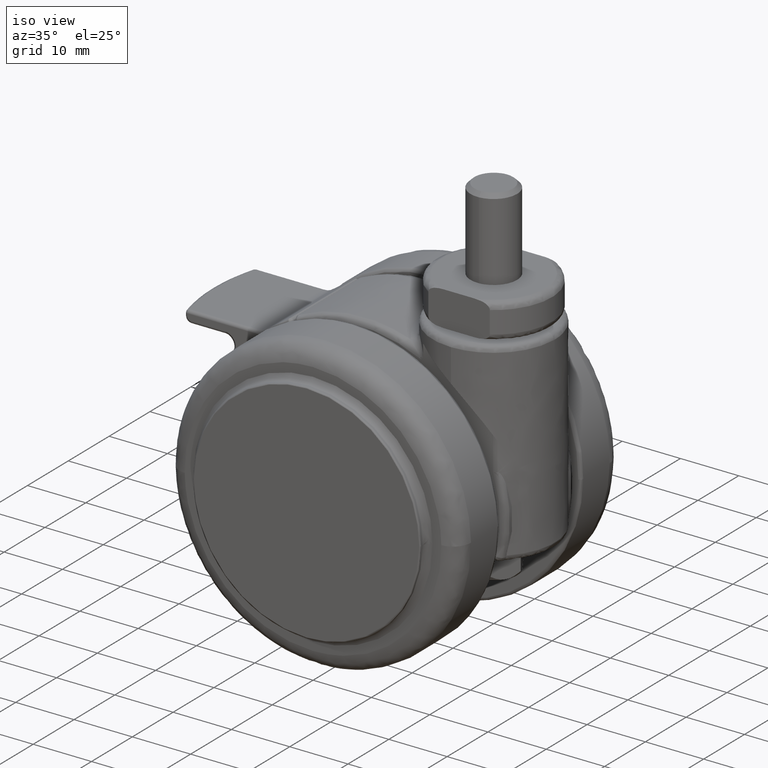
[diagram: clean part render]
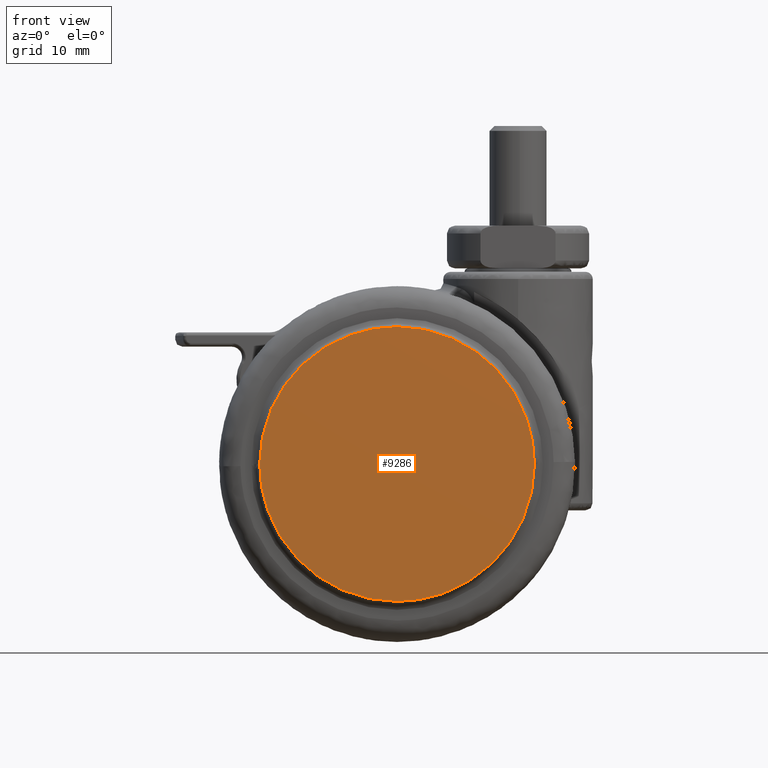
[diagram: tour spotlight — one face highlighted and labeled with its STEP entity id]
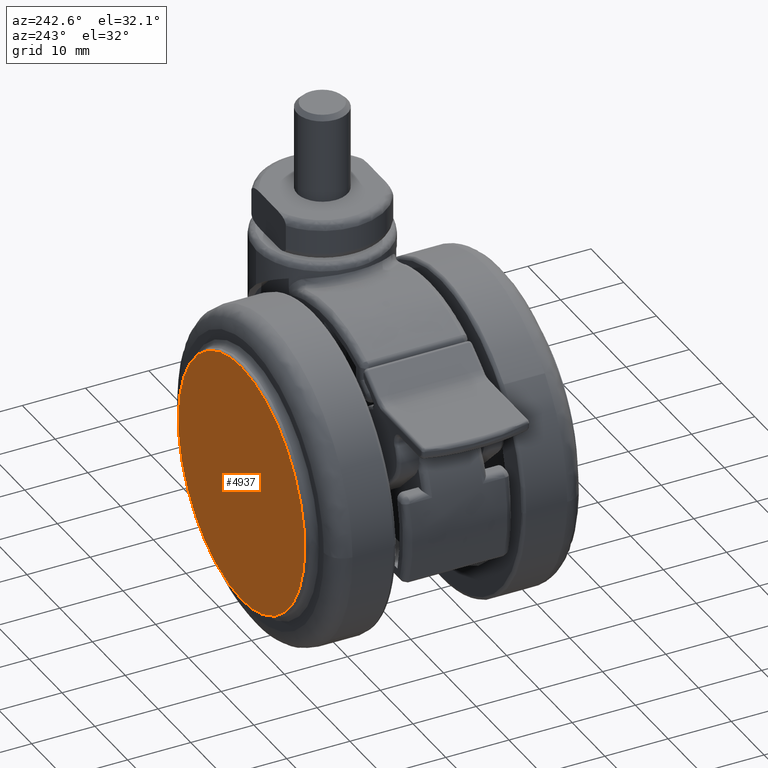
[diagram: tour spotlight — one face highlighted and labeled with its STEP entity id]
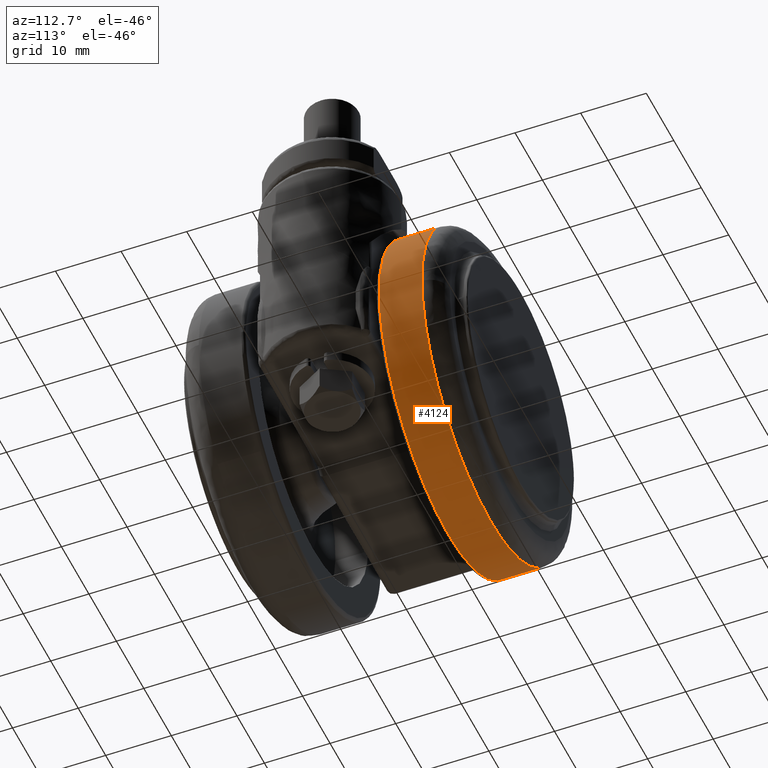
[diagram: tour spotlight — one face highlighted and labeled with its STEP entity id]
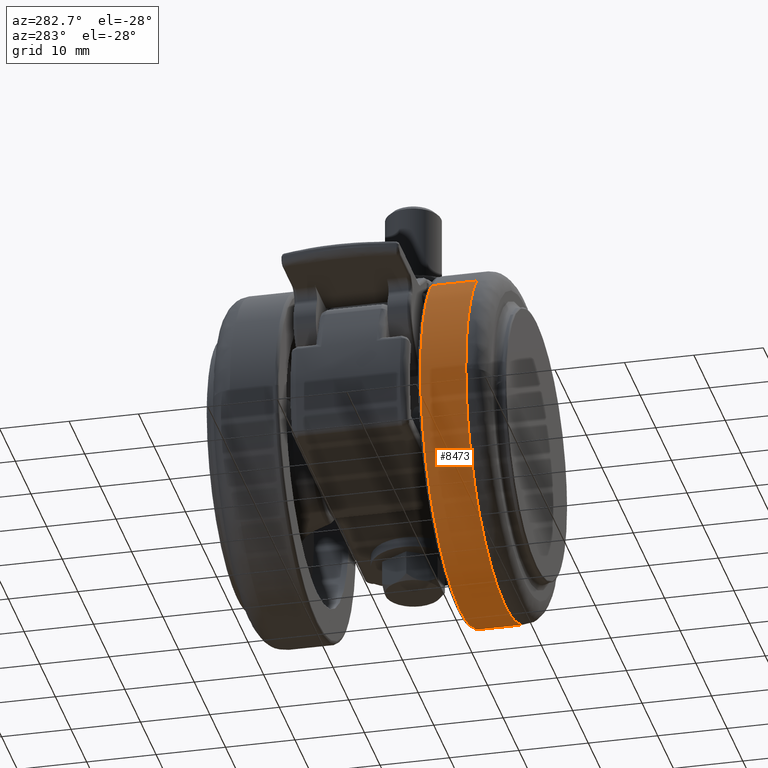
[diagram: tour spotlight — one face highlighted and labeled with its STEP entity id]
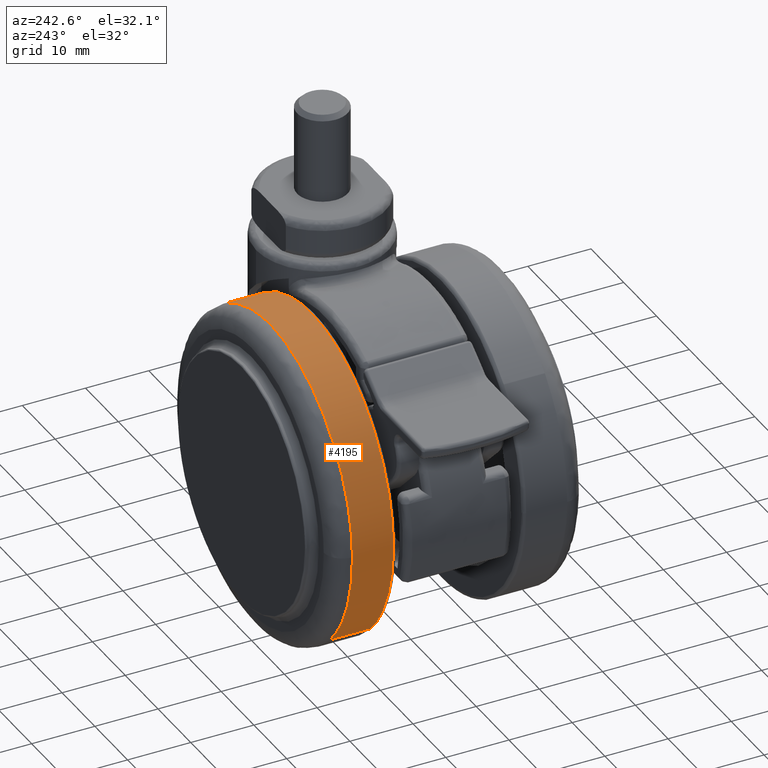
[diagram: tour spotlight — one face highlighted and labeled with its STEP entity id]
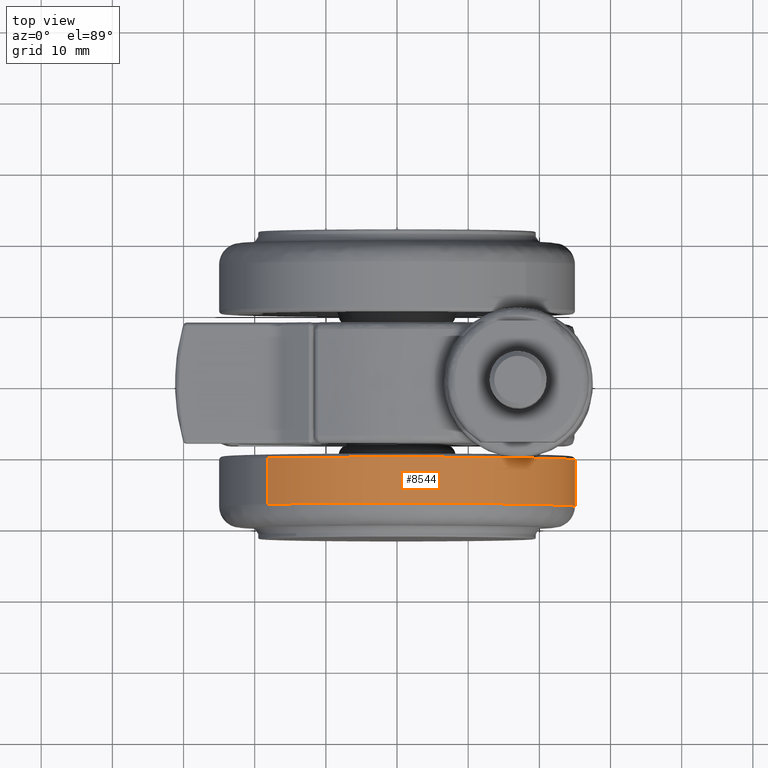
[diagram: tour spotlight — one face highlighted and labeled with its STEP entity id]
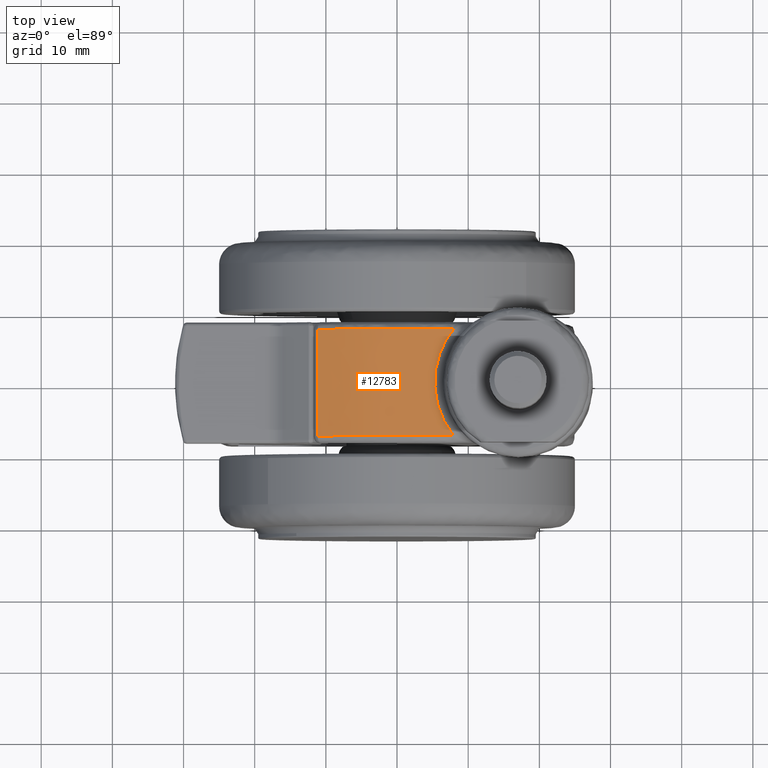
[diagram: tour spotlight — one face highlighted and labeled with its STEP entity id]
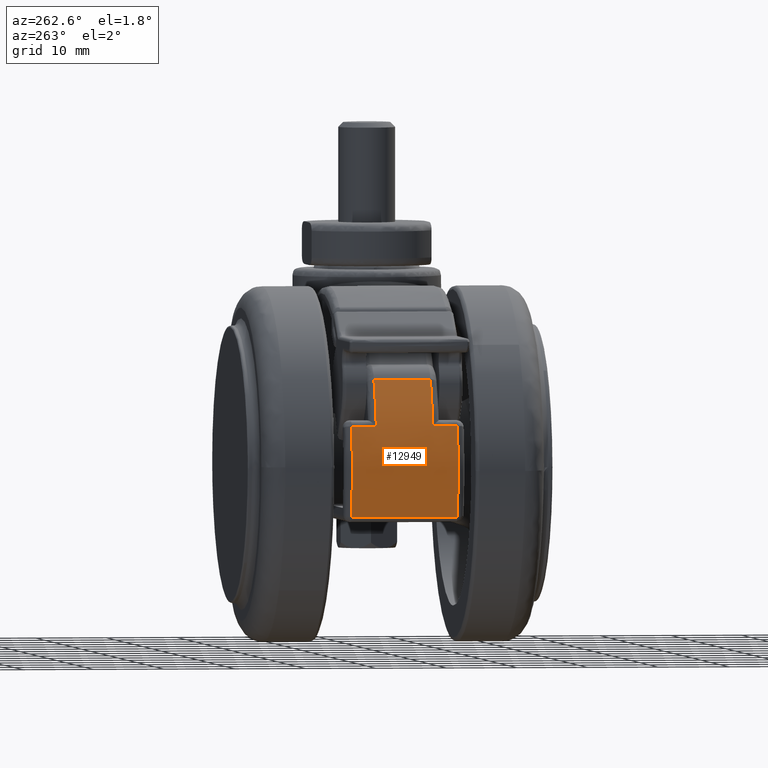
[diagram: tour spotlight — one face highlighted and labeled with its STEP entity id]
A machine part: a face-by-face anatomy tour. The part has 246 B-rep faces; the first image is the clean iso view, then the 8 largest visible faces are spotlighted one at a time (largest first), each with its STEP entity span.

Face 1 — front view, entity #9286. In plain terms, the highlighted face is a freeform B-spline surface patch.
Definition (entity closure, byte-faithful):
#9148=CARTESIAN_POINT('',(-19.300000002463179,-21.600000000000001,-1.770490E-015));
#9149=VERTEX_POINT('',#9148);
#9163=CARTESIAN_POINT('',(0.0,-21.600000000000001,19.300000000000001));
#9164=VERTEX_POINT('',#9163);
#9165=CARTESIAN_POINT('',(-19.300000002463179,-21.600000000000001,-1.770490E-015));
#9166=CARTESIAN_POINT('',(-19.300000001231588,-21.599999999999991,19.300000000000008));
#9167=CARTESIAN_POINT('',(0.0,-21.600000000000001,19.300000000000001));
#9175=(BOUNDED_CURVE()B_SPLINE_CURVE(2,(#9165,#9166,#9167),.UNSPECIFIED.,.F.,.U.)B_SPLINE_CURVE_WITH_KNOTS((3,3),(0.750000000000000,1.0),.UNSPECIFIED.)CURVE()GEOMETRIC_REPRESENTATION_ITEM()RATIONAL_B_SPLINE_CURVE((1.0,0.707106781186547,1.0))REPRESENTATION_ITEM(''));
#9176=EDGE_CURVE('',#9149,#9164,#9175,.T.);
#9178=CARTESIAN_POINT('',(19.300000002463179,-21.600000000000001,8.852452E-016));
#9179=VERTEX_POINT('',#9178);
#9180=CARTESIAN_POINT('',(0.0,-21.600000000000001,19.300000000000001));
#9181=CARTESIAN_POINT('',(19.300000001231588,-21.599999999999991,19.300000000000008));
#9182=CARTESIAN_POINT('',(19.300000002463179,-21.600000000000001,8.852452E-016));
#9190=(BOUNDED_CURVE()B_SPLINE_CURVE(2,(#9180,#9181,#9182),.UNSPECIFIED.,.F.,.U.)B_SPLINE_CURVE_WITH_KNOTS((3,3),(0.0,0.250000000000000),.UNSPECIFIED.)CURVE()GEOMETRIC_REPRESENTATION_ITEM()RATIONAL_B_SPLINE_CURVE((1.0,0.707106781186547,1.0))REPRESENTATION_ITEM(''));
#9191=EDGE_CURVE('',#9164,#9179,#9190,.T.);
#9243=CARTESIAN_POINT('',(0.0,-21.600000000000001,-19.300000000000001));
#9244=VERTEX_POINT('',#9243);
#9245=CARTESIAN_POINT('',(19.300000002463179,-21.600000000000001,8.852452E-016));
#9246=CARTESIAN_POINT('',(19.300000001231588,-21.600000000000009,-19.300000000000008));
#9247=CARTESIAN_POINT('',(0.0,-21.600000000000001,-19.300000000000001));
#9255=(BOUNDED_CURVE()B_SPLINE_CURVE(2,(#9245,#9246,#9247),.UNSPECIFIED.,.F.,.U.)B_SPLINE_CURVE_WITH_KNOTS((3,3),(0.250000000000000,0.500000000000000),.UNSPECIFIED.)CURVE()GEOMETRIC_REPRESENTATION_ITEM()RATIONAL_B_SPLINE_CURVE((1.0,0.707106781186547,1.0))REPRESENTATION_ITEM(''));
#9256=EDGE_CURVE('',#9179,#9244,#9255,.T.);
#9258=CARTESIAN_POINT('',(0.0,-21.600000000000001,-19.300000000000001));
#9259=CARTESIAN_POINT('',(-19.300000001231588,-21.600000000000009,-19.300000000000008));
#9260=CARTESIAN_POINT('',(-19.300000002463179,-21.600000000000001,-1.770490E-015));
#9268=(BOUNDED_CURVE()B_SPLINE_CURVE(2,(#9258,#9259,#9260),.UNSPECIFIED.,.F.,.U.)B_SPLINE_CURVE_WITH_KNOTS((3,3),(0.500000000000000,0.750000000000000),.UNSPECIFIED.)CURVE()GEOMETRIC_REPRESENTATION_ITEM()RATIONAL_B_SPLINE_CURVE((1.0,0.707106781186547,1.0))REPRESENTATION_ITEM(''));
#9269=EDGE_CURVE('',#9244,#9149,#9268,.T.);
#9275=CARTESIAN_POINT('',(-21.228069927894961,-21.600000000000001,-21.228069925185711));
#9276=CARTESIAN_POINT('',(-21.228069927894961,-21.600000000000001,21.228070960518391));
#9277=CARTESIAN_POINT('',(21.228070963227641,-21.600000000000001,-21.228069925185711));
#9278=CARTESIAN_POINT('',(21.228070963227641,-21.600000000000001,21.228070960518391));
#9279=B_SPLINE_SURFACE_WITH_KNOTS('',1,1,((#9275,#9277),(#9276,#9278)),.UNSPECIFIED.,.F.,.F.,.U.,(2,2),(2,2),(0.0,42.456140885704102),(0.0,42.456140891122601),.UNSPECIFIED.);
#9280=ORIENTED_EDGE('',*,*,#9176,.F.);
#9281=ORIENTED_EDGE('',*,*,#9269,.F.);
#9282=ORIENTED_EDGE('',*,*,#9256,.F.);
#9283=ORIENTED_EDGE('',*,*,#9191,.F.);
#9284=EDGE_LOOP('',(#9280,#9281,#9282,#9283));
#9285=FACE_OUTER_BOUND('',#9284,.T.);
#9286=ADVANCED_FACE('',(#9285),#9279,.F.);

Face 2 — auxiliary view, entity #4937. In plain terms, the highlighted face is a freeform B-spline surface patch.
Definition (entity closure, byte-faithful):
#4799=CARTESIAN_POINT('',(19.300000002463179,21.600000000000001,-1.770490E-015));
#4800=VERTEX_POINT('',#4799);
#4814=CARTESIAN_POINT('',(2.645150E-015,21.600000000000001,19.300000000000001));
#4815=VERTEX_POINT('',#4814);
#4816=CARTESIAN_POINT('',(19.300000002463179,21.600000000000001,-1.770490E-015));
#4817=CARTESIAN_POINT('',(19.300000001231588,21.599999999999991,19.300000000000008));
#4818=CARTESIAN_POINT('',(2.645150E-015,21.600000000000001,19.300000000000001));
#4826=(BOUNDED_CURVE()B_SPLINE_CURVE(2,(#4816,#4817,#4818),.UNSPECIFIED.,.F.,.U.)B_SPLINE_CURVE_WITH_KNOTS((3,3),(0.750000000000000,1.0),.UNSPECIFIED.)CURVE()GEOMETRIC_REPRESENTATION_ITEM()RATIONAL_B_SPLINE_CURVE((1.0,0.707106781186547,1.0))REPRESENTATION_ITEM(''));
#4827=EDGE_CURVE('',#4800,#4815,#4826,.T.);
#4829=CARTESIAN_POINT('',(-19.300000002463179,21.600000000000009,8.852452E-016));
#4830=VERTEX_POINT('',#4829);
#4831=CARTESIAN_POINT('',(2.645150E-015,21.600000000000001,19.300000000000001));
#4832=CARTESIAN_POINT('',(-19.300000001231588,21.600000000000009,19.300000000000008));
#4833=CARTESIAN_POINT('',(-19.300000002463179,21.600000000000009,8.852452E-016));
#4841=(BOUNDED_CURVE()B_SPLINE_CURVE(2,(#4831,#4832,#4833),.UNSPECIFIED.,.F.,.U.)B_SPLINE_CURVE_WITH_KNOTS((3,3),(0.0,0.250000000000000),.UNSPECIFIED.)CURVE()GEOMETRIC_REPRESENTATION_ITEM()RATIONAL_B_SPLINE_CURVE((1.0,0.707106781186547,1.0))REPRESENTATION_ITEM(''));
#4842=EDGE_CURVE('',#4815,#4830,#4841,.T.);
#4894=CARTESIAN_POINT('',(2.645150E-015,21.600000000000001,-19.300000000000001));
#4895=VERTEX_POINT('',#4894);
#4896=CARTESIAN_POINT('',(-19.300000002463179,21.600000000000009,8.852452E-016));
#4897=CARTESIAN_POINT('',(-19.300000001231588,21.600000000000009,-19.300000000000008));
#4898=CARTESIAN_POINT('',(2.645150E-015,21.600000000000001,-19.300000000000001));
#4906=(BOUNDED_CURVE()B_SPLINE_CURVE(2,(#4896,#4897,#4898),.UNSPECIFIED.,.F.,.U.)B_SPLINE_CURVE_WITH_KNOTS((3,3),(0.250000000000000,0.500000000000000),.UNSPECIFIED.)CURVE()GEOMETRIC_REPRESENTATION_ITEM()RATIONAL_B_SPLINE_CURVE((1.0,0.707106781186547,1.0))REPRESENTATION_ITEM(''));
#4907=EDGE_CURVE('',#4830,#4895,#4906,.T.);
#4909=CARTESIAN_POINT('',(2.645150E-015,21.600000000000001,-19.300000000000001));
#4910=CARTESIAN_POINT('',(19.300000001231588,21.599999999999991,-19.300000000000008));
#4911=CARTESIAN_POINT('',(19.300000002463179,21.600000000000001,-1.770490E-015));
#4919=(BOUNDED_CURVE()B_SPLINE_CURVE(2,(#4909,#4910,#4911),.UNSPECIFIED.,.F.,.U.)B_SPLINE_CURVE_WITH_KNOTS((3,3),(0.500000000000000,0.750000000000000),.UNSPECIFIED.)CURVE()GEOMETRIC_REPRESENTATION_ITEM()RATIONAL_B_SPLINE_CURVE((1.0,0.707106781186547,1.0))REPRESENTATION_ITEM(''));
#4920=EDGE_CURVE('',#4895,#4800,#4919,.T.);
#4926=CARTESIAN_POINT('',(21.228069927894961,21.600000000000001,-21.228069925185711));
#4927=CARTESIAN_POINT('',(21.228069927894961,21.600000000000001,21.228070960518391));
#4928=CARTESIAN_POINT('',(-21.228070963227641,21.600000000000009,-21.228069925185711));
#4929=CARTESIAN_POINT('',(-21.228070963227641,21.600000000000009,21.228070960518391));
#4930=B_SPLINE_SURFACE_WITH_KNOTS('',1,1,((#4926,#4928),(#4927,#4929)),.UNSPECIFIED.,.F.,.F.,.U.,(2,2),(2,2),(0.0,42.456140885704102),(0.0,42.456140891122601),.UNSPECIFIED.);
#4931=ORIENTED_EDGE('',*,*,#4827,.F.);
#4932=ORIENTED_EDGE('',*,*,#4920,.F.);
#4933=ORIENTED_EDGE('',*,*,#4907,.F.);
#4934=ORIENTED_EDGE('',*,*,#4842,.F.);
#4935=EDGE_LOOP('',(#4931,#4932,#4933,#4934));
#4936=FACE_OUTER_BOUND('',#4935,.T.);
#4937=ADVANCED_FACE('',(#4936),#4930,.F.);

Face 3 — auxiliary view, entity #4124. In plain terms, the highlighted face is a freeform B-spline surface patch.
Definition (entity closure, byte-faithful):
#3897=CARTESIAN_POINT('',(-18.134359921646951,10.499999999096900,-17.208863711243801));
#3898=VERTEX_POINT('',#3897);
#3914=CARTESIAN_POINT('',(1.285837E-015,10.500000000000000,-25.0));
#3915=VERTEX_POINT('',#3914);
#3916=CARTESIAN_POINT('',(-18.134359921646954,10.499999999096879,-17.208863711243819));
#3917=CARTESIAN_POINT('',(-10.740848205312046,10.499999999627256,-24.999999999999996));
#3918=CARTESIAN_POINT('',(1.285837E-015,10.500000000000000,-25.0));
#3926=(BOUNDED_CURVE()B_SPLINE_CURVE(2,(#3916,#3917,#3918),.UNSPECIFIED.,.F.,.U.)B_SPLINE_CURVE_WITH_KNOTS((3,3),(0.371049520990958,0.500000000000000),.UNSPECIFIED.)CURVE()GEOMETRIC_REPRESENTATION_ITEM()RATIONAL_B_SPLINE_CURVE((0.853699661789174,0.848925116542021,1.0))REPRESENTATION_ITEM(''));
#3927=EDGE_CURVE('',#3898,#3915,#3926,.T.);
#3929=CARTESIAN_POINT('',(24.998026105095381,10.499999998242879,-0.314150997084987));
#3930=VERTEX_POINT('',#3929);
#3931=CARTESIAN_POINT('',(1.285837E-015,10.500000000000000,-25.0));
#3932=CARTESIAN_POINT('',(24.687798247681695,10.499999999121441,-24.999999999999996));
#3933=CARTESIAN_POINT('',(24.998026105095381,10.499999998242881,-0.314150997084987));
#3941=(BOUNDED_CURVE()B_SPLINE_CURVE(2,(#3931,#3932,#3933),.UNSPECIFIED.,.F.,.U.)B_SPLINE_CURVE_WITH_KNOTS((3,3),(0.500000000000000,0.747784295921720),.UNSPECIFIED.)CURVE()GEOMETRIC_REPRESENTATION_ITEM()RATIONAL_B_SPLINE_CURVE((1.0,0.709702639984250,0.994854295643993))REPRESENTATION_ITEM(''));
#3942=EDGE_CURVE('',#3915,#3930,#3941,.T.);
#3993=CARTESIAN_POINT('',(18.134359921646951,10.499999999096890,17.208863711243801));
#3994=VERTEX_POINT('',#3993);
#3995=CARTESIAN_POINT('',(24.998026105095381,10.499999998242881,-0.314150997084987));
#3996=CARTESIAN_POINT('',(24.999999999999993,10.499999998248336,-0.157081699797828));
#3997=CARTESIAN_POINT('',(24.999999999999989,10.499999998253850,4.137340E-015));
#3998=CARTESIAN_POINT('',(24.999999999999986,10.499999998604361,9.973988105134460));
#3999=CARTESIAN_POINT('',(18.134359921646954,10.499999999096875,17.208863711243819));
#4007=(BOUNDED_CURVE()B_SPLINE_CURVE(2,(#3995,#3996,#3997,#3998,#3999),.UNSPECIFIED.,.F.,.U.)B_SPLINE_CURVE_WITH_KNOTS((3,2,3),(0.747784295921720,0.750000000000000,0.871049520990958),.UNSPECIFIED.)CURVE()GEOMETRIC_REPRESENTATION_ITEM()RATIONAL_B_SPLINE_CURVE((0.994854295643993,0.997404141202298,1.0,0.858181664644527,0.853699661789174))REPRESENTATION_ITEM(''));
#4008=EDGE_CURVE('',#3930,#3994,#4007,.T.);
#4042=CARTESIAN_POINT('',(-18.134359275307180,17.162500000286400,-17.208864392343848));
#4043=CARTESIAN_POINT('',(-0.925494882963340,17.162500000286403,-35.343223667651039));
#4044=CARTESIAN_POINT('',(17.208864392343848,17.162500000286400,-18.134359275307190));
#4045=CARTESIAN_POINT('',(35.343223667651039,17.162500000286403,-0.925494882963342));
#4046=CARTESIAN_POINT('',(18.134359275307190,17.162500000286400,17.208864392343848));
#4047=CARTESIAN_POINT('',(-18.134359275307190,10.333437498191801,-17.208864392343848));
#4048=CARTESIAN_POINT('',(-0.925494882963341,10.333437498191795,-35.343223667651039));
#4049=CARTESIAN_POINT('',(17.208864392343848,10.333437498191790,-18.134359275307190));
#4050=CARTESIAN_POINT('',(35.343223667651039,10.333437498191792,-0.925494882963342));
#4051=CARTESIAN_POINT('',(18.134359275307190,10.333437498191790,17.208864392343848));
#4059=(BOUNDED_SURFACE()B_SPLINE_SURFACE(2,1,((#4042,#4047),(#4043,#4048),(#4044,#4049),(#4045,#4050),(#4046,#4051)),.UNSPECIFIED.,.F.,.F.,.U.)B_SPLINE_SURFACE_WITH_KNOTS((3,2,3),(2,2),(0.0,41.421356237309503,82.842712474618992),(0.0,6.829062502094605),.UNSPECIFIED.)GEOMETRIC_REPRESENTATION_ITEM()RATIONAL_B_SPLINE_SURFACE(((1.0,1.0),(0.707106781186548,0.707106781186548),(1.0,1.0),(0.707106781186548,0.707106781186548),(1.0,1.0)))REPRESENTATION_ITEM('')SURFACE());
#4060=ORIENTED_EDGE('',*,*,#3927,.F.);
#4061=CARTESIAN_POINT('',(-18.134359913672380,17.000000000121592,-17.208863719647240));
#4062=VERTEX_POINT('',#4061);
#4063=CARTESIAN_POINT('',(-18.134359913672380,17.000000000121592,-17.208863719647240));
#4064=CARTESIAN_POINT('',(-18.134359921646951,10.499999999096900,-17.208863711243801));
#4065=QUASI_UNIFORM_CURVE('',1,(#4063,#4064),.UNSPECIFIED.,.F.,.U.);
#4066=EDGE_CURVE('',#4062,#3898,#4065,.T.);
#4067=ORIENTED_EDGE('',*,*,#4066,.F.);
#4068=CARTESIAN_POINT('',(2.081831E-015,17.0,-25.0));
#4069=VERTEX_POINT('',#4068);
#4070=CARTESIAN_POINT('',(-18.134359913672395,17.000000000121595,-17.208863719647251));
#4071=CARTESIAN_POINT('',(-10.740848198450356,17.000000000050179,-25.000000000000004));
#4072=CARTESIAN_POINT('',(2.081831E-015,17.0,-25.0));
#4080=(BOUNDED_CURVE()B_SPLINE_CURVE(2,(#4070,#4071,#4072),.UNSPECIFIED.,.F.,.U.)B_SPLINE_CURVE_WITH_KNOTS((3,3),(0.371049521060892,0.500000000000000),.UNSPECIFIED.)CURVE()GEOMETRIC_REPRESENTATION_ITEM()RATIONAL_B_SPLINE_CURVE((0.853699661783995,0.848925116623953,1.0))REPRESENTATION_ITEM(''));
#4081=EDGE_CURVE('',#4062,#4069,#4080,.T.);
#4082=ORIENTED_EDGE('',*,*,#4081,.T.);
#4083=CARTESIAN_POINT('',(24.998026105095391,17.000000000236550,-0.314150997084988));
#4084=VERTEX_POINT('',#4083);
#4085=CARTESIAN_POINT('',(2.081831E-015,17.0,-25.0));
#4086=CARTESIAN_POINT('',(24.687798247681695,17.000000000118270,-24.999999999999996));
#4087=CARTESIAN_POINT('',(24.998026105095391,17.000000000236554,-0.314150997084988));
#4095=(BOUNDED_CURVE()B_SPLINE_CURVE(2,(#4085,#4086,#4087),.UNSPECIFIED.,.F.,.U.)B_SPLINE_CURVE_WITH_KNOTS((3,3),(0.500000000000000,0.747784295921720),.UNSPECIFIED.)CURVE()GEOMETRIC_REPRESENTATION_ITEM()RATIONAL_B_SPLINE_CURVE((1.0,0.709702639984250,0.994854295643993))REPRESENTATION_ITEM(''));
#4096=EDGE_CURVE('',#4069,#4084,#4095,.T.);
#4097=ORIENTED_EDGE('',*,*,#4096,.T.);
#4098=CARTESIAN_POINT('',(18.134359913672402,17.000000000121581,17.208863719647230));
#4099=VERTEX_POINT('',#4098);
#4100=CARTESIAN_POINT('',(24.998026105095391,17.000000000236554,-0.314150997084988));
#4101=CARTESIAN_POINT('',(24.999999999999993,17.000000000235822,-0.157081699797829));
#4102=CARTESIAN_POINT('',(25.0,17.000000000235069,3.122195E-015));
#4103=CARTESIAN_POINT('',(25.0,17.000000000187882,9.973988111848920));
#4104=CARTESIAN_POINT('',(18.134359913672405,17.000000000121585,17.208863719647240));
#4112=(BOUNDED_CURVE()B_SPLINE_CURVE(2,(#4100,#4101,#4102,#4103,#4104),.UNSPECIFIED.,.F.,.U.)B_SPLINE_CURVE_WITH_KNOTS((3,2,3),(0.747784295921720,0.750000000000000,0.871049521060892),.UNSPECIFIED.)CURVE()GEOMETRIC_REPRESENTATION_ITEM()RATIONAL_B_SPLINE_CURVE((0.994854295643993,0.997404141202298,1.0,0.858181664562594,0.853699661783996))REPRESENTATION_ITEM(''));
#4113=EDGE_CURVE('',#4084,#4099,#4112,.T.);
#4114=ORIENTED_EDGE('',*,*,#4113,.T.);
#4115=CARTESIAN_POINT('',(18.134359913672402,17.000000000121581,17.208863719647230));
#4116=CARTESIAN_POINT('',(18.134359921646951,10.499999999096890,17.208863711243801));
#4117=QUASI_UNIFORM_CURVE('',1,(#4115,#4116),.UNSPECIFIED.,.F.,.U.);
#4118=EDGE_CURVE('',#4099,#3994,#4117,.T.);
#4119=ORIENTED_EDGE('',*,*,#4118,.T.);
#4120=ORIENTED_EDGE('',*,*,#4008,.F.);
#4121=ORIENTED_EDGE('',*,*,#3942,.F.);
#4122=EDGE_LOOP('',(#4060,#4067,#4082,#4097,#4114,#4119,#4120,#4121));
#4123=FACE_OUTER_BOUND('',#4122,.T.);
#4124=ADVANCED_FACE('',(#4123),#4059,.T.);

Face 4 — auxiliary view, entity #8473. In plain terms, the highlighted face is a freeform B-spline surface patch.
Definition (entity closure, byte-faithful):
#8246=CARTESIAN_POINT('',(18.134359921646951,-10.499999999096890,-17.208863711243801));
#8247=VERTEX_POINT('',#8246);
#8263=CARTESIAN_POINT('',(0.0,-10.500000000000000,-25.0));
#8264=VERTEX_POINT('',#8263);
#8265=CARTESIAN_POINT('',(18.134359921646954,-10.499999999096877,-17.208863711243819));
#8266=CARTESIAN_POINT('',(10.740848205312048,-10.499999999627255,-24.999999999999996));
#8267=CARTESIAN_POINT('',(0.0,-10.500000000000000,-25.0));
#8275=(BOUNDED_CURVE()B_SPLINE_CURVE(2,(#8265,#8266,#8267),.UNSPECIFIED.,.F.,.U.)B_SPLINE_CURVE_WITH_KNOTS((3,3),(0.371049520990958,0.500000000000000),.UNSPECIFIED.)CURVE()GEOMETRIC_REPRESENTATION_ITEM()RATIONAL_B_SPLINE_CURVE((0.853699661789174,0.848925116542021,1.0))REPRESENTATION_ITEM(''));
#8276=EDGE_CURVE('',#8247,#8264,#8275,.T.);
#8278=CARTESIAN_POINT('',(-24.998026105095381,-10.499999998242890,-0.314150997084987));
#8279=VERTEX_POINT('',#8278);
#8280=CARTESIAN_POINT('',(0.0,-10.500000000000000,-25.0));
#8281=CARTESIAN_POINT('',(-24.687798247681695,-10.499999999121442,-24.999999999999996));
#8282=CARTESIAN_POINT('',(-24.998026105095381,-10.499999998242881,-0.314150997084987));
#8290=(BOUNDED_CURVE()B_SPLINE_CURVE(2,(#8280,#8281,#8282),.UNSPECIFIED.,.F.,.U.)B_SPLINE_CURVE_WITH_KNOTS((3,3),(0.500000000000000,0.747784295921720),.UNSPECIFIED.)CURVE()GEOMETRIC_REPRESENTATION_ITEM()RATIONAL_B_SPLINE_CURVE((1.0,0.709702639984250,0.994854295643993))REPRESENTATION_ITEM(''));
#8291=EDGE_CURVE('',#8264,#8279,#8290,.T.);
#8342=CARTESIAN_POINT('',(-18.134359921646951,-10.499999999096890,17.208863711243801));
#8343=VERTEX_POINT('',#8342);
#8344=CARTESIAN_POINT('',(-24.998026105095381,-10.499999998242881,-0.314150997084987));
#8345=CARTESIAN_POINT('',(-24.999999999999993,-10.499999998248336,-0.157081699797828));
#8346=CARTESIAN_POINT('',(-24.999999999999989,-10.499999998253861,4.137340E-015));
#8347=CARTESIAN_POINT('',(-24.999999999999986,-10.499999998604364,9.973988105134460));
#8348=CARTESIAN_POINT('',(-18.134359921646954,-10.499999999096877,17.208863711243819));
#8356=(BOUNDED_CURVE()B_SPLINE_CURVE(2,(#8344,#8345,#8346,#8347,#8348),.UNSPECIFIED.,.F.,.U.)B_SPLINE_CURVE_WITH_KNOTS((3,2,3),(0.747784295921720,0.750000000000000,0.871049520990958),.UNSPECIFIED.)CURVE()GEOMETRIC_REPRESENTATION_ITEM()RATIONAL_B_SPLINE_CURVE((0.994854295643993,0.997404141202298,1.0,0.858181664644527,0.853699661789174))REPRESENTATION_ITEM(''));
#8357=EDGE_CURVE('',#8279,#8343,#8356,.T.);
#8391=CARTESIAN_POINT('',(18.134359275307190,-17.162500000286400,-17.208864392343848));
#8392=CARTESIAN_POINT('',(0.925494882963342,-17.162500000286403,-35.343223667651039));
#8393=CARTESIAN_POINT('',(-17.208864392343848,-17.162500000286400,-18.134359275307190));
#8394=CARTESIAN_POINT('',(-35.343223667651039,-17.162500000286403,-0.925494882963342));
#8395=CARTESIAN_POINT('',(-18.134359275307190,-17.162500000286400,17.208864392343848));
#8396=CARTESIAN_POINT('',(18.134359275307190,-10.333437498191801,-17.208864392343848));
#8397=CARTESIAN_POINT('',(0.925494882963342,-10.333437498191795,-35.343223667651039));
#8398=CARTESIAN_POINT('',(-17.208864392343848,-10.333437498191801,-18.134359275307190));
#8399=CARTESIAN_POINT('',(-35.343223667651039,-10.333437498191795,-0.925494882963342));
#8400=CARTESIAN_POINT('',(-18.134359275307190,-10.333437498191801,17.208864392343848));
#8408=(BOUNDED_SURFACE()B_SPLINE_SURFACE(2,1,((#8391,#8396),(#8392,#8397),(#8393,#8398),(#8394,#8399),(#8395,#8400)),.UNSPECIFIED.,.F.,.F.,.U.)B_SPLINE_SURFACE_WITH_KNOTS((3,2,3),(2,2),(0.0,41.421356237309503,82.842712474618992),(0.0,6.829062502094605),.UNSPECIFIED.)GEOMETRIC_REPRESENTATION_ITEM()RATIONAL_B_SPLINE_SURFACE(((1.0,1.0),(0.707106781186548,0.707106781186548),(1.0,1.0),(0.707106781186548,0.707106781186548),(1.0,1.0)))REPRESENTATION_ITEM('')SURFACE());
#8409=ORIENTED_EDGE('',*,*,#8276,.F.);
#8410=CARTESIAN_POINT('',(18.134359913672391,-17.000000000121592,-17.208863719647240));
#8411=VERTEX_POINT('',#8410);
#8412=CARTESIAN_POINT('',(18.134359913672391,-17.000000000121592,-17.208863719647240));
#8413=CARTESIAN_POINT('',(18.134359921646951,-10.499999999096890,-17.208863711243801));
#8414=QUASI_UNIFORM_CURVE('',1,(#8412,#8413),.UNSPECIFIED.,.F.,.U.);
#8415=EDGE_CURVE('',#8411,#8247,#8414,.T.);
#8416=ORIENTED_EDGE('',*,*,#8415,.F.);
#8417=CARTESIAN_POINT('',(0.0,-17.0,-25.0));
#8418=VERTEX_POINT('',#8417);
#8419=CARTESIAN_POINT('',(18.134359913672395,-17.000000000121585,-17.208863719647251));
#8420=CARTESIAN_POINT('',(10.740848198450360,-17.000000000050179,-25.000000000000004));
#8421=CARTESIAN_POINT('',(0.0,-17.0,-25.0));
#8429=(BOUNDED_CURVE()B_SPLINE_CURVE(2,(#8419,#8420,#8421),.UNSPECIFIED.,.F.,.U.)B_SPLINE_CURVE_WITH_KNOTS((3,3),(0.371049521060892,0.500000000000000),.UNSPECIFIED.)CURVE()GEOMETRIC_REPRESENTATION_ITEM()RATIONAL_B_SPLINE_CURVE((0.853699661783995,0.848925116623953,1.0))REPRESENTATION_ITEM(''));
#8430=EDGE_CURVE('',#8411,#8418,#8429,.T.);
#8431=ORIENTED_EDGE('',*,*,#8430,.T.);
#8432=CARTESIAN_POINT('',(-24.998026105095381,-17.000000000236561,-0.314150997084988));
#8433=VERTEX_POINT('',#8432);
#8434=CARTESIAN_POINT('',(0.0,-17.0,-25.0));
#8435=CARTESIAN_POINT('',(-24.687798247681695,-17.000000000118284,-24.999999999999996));
#8436=CARTESIAN_POINT('',(-24.998026105095381,-17.000000000236554,-0.314150997084988));
#8444=(BOUNDED_CURVE()B_SPLINE_CURVE(2,(#8434,#8435,#8436),.UNSPECIFIED.,.F.,.U.)B_SPLINE_CURVE_WITH_KNOTS((3,3),(0.500000000000000,0.747784295921720),.UNSPECIFIED.)CURVE()GEOMETRIC_REPRESENTATION_ITEM()RATIONAL_B_SPLINE_CURVE((1.0,0.709702639984250,0.994854295643993))REPRESENTATION_ITEM(''));
#8445=EDGE_CURVE('',#8418,#8433,#8444,.T.);
#8446=ORIENTED_EDGE('',*,*,#8445,.T.);
#8447=CARTESIAN_POINT('',(-18.134359913672391,-17.000000000121592,17.208863719647230));
#8448=VERTEX_POINT('',#8447);
#8449=CARTESIAN_POINT('',(-24.998026105095381,-17.000000000236554,-0.314150997084988));
#8450=CARTESIAN_POINT('',(-24.999999999999993,-17.000000000235822,-0.157081699797829));
#8451=CARTESIAN_POINT('',(-24.999999999999989,-17.000000000235080,3.122195E-015));
#8452=CARTESIAN_POINT('',(-24.999999999999989,-17.000000000187892,9.973988111848920));
#8453=CARTESIAN_POINT('',(-18.134359913672405,-17.000000000121585,17.208863719647240));
#8461=(BOUNDED_CURVE()B_SPLINE_CURVE(2,(#8449,#8450,#8451,#8452,#8453),.UNSPECIFIED.,.F.,.U.)B_SPLINE_CURVE_WITH_KNOTS((3,2,3),(0.747784295921720,0.750000000000000,0.871049521060892),.UNSPECIFIED.)CURVE()GEOMETRIC_REPRESENTATION_ITEM()RATIONAL_B_SPLINE_CURVE((0.994854295643993,0.997404141202298,1.0,0.858181664562594,0.853699661783996))REPRESENTATION_ITEM(''));
#8462=EDGE_CURVE('',#8433,#8448,#8461,.T.);
#8463=ORIENTED_EDGE('',*,*,#8462,.T.);
#8464=CARTESIAN_POINT('',(-18.134359913672391,-17.000000000121592,17.208863719647230));
#8465=CARTESIAN_POINT('',(-18.134359921646951,-10.499999999096890,17.208863711243801));
#8466=QUASI_UNIFORM_CURVE('',1,(#8464,#8465),.UNSPECIFIED.,.F.,.U.);
#8467=EDGE_CURVE('',#8448,#8343,#8466,.T.);
#8468=ORIENTED_EDGE('',*,*,#8467,.T.);
#8469=ORIENTED_EDGE('',*,*,#8357,.F.);
#8470=ORIENTED_EDGE('',*,*,#8291,.F.);
#8471=EDGE_LOOP('',(#8409,#8416,#8431,#8446,#8463,#8468,#8469,#8470));
#8472=FACE_OUTER_BOUND('',#8471,.T.);
#8473=ADVANCED_FACE('',(#8472),#8408,.T.);

Face 5 — auxiliary view, entity #4195. In plain terms, the highlighted face is a freeform B-spline surface patch.
Definition (entity closure, byte-faithful):
#3882=CARTESIAN_POINT('',(-24.998026105095381,10.499999998242890,0.314150997084991));
#3883=VERTEX_POINT('',#3882);
#3897=CARTESIAN_POINT('',(-18.134359921646951,10.499999999096900,-17.208863711243801));
#3898=VERTEX_POINT('',#3897);
#3899=CARTESIAN_POINT('',(-24.998026105095381,10.499999998242890,0.314150997084991));
#3900=CARTESIAN_POINT('',(-24.999999999999993,10.499999998248345,0.157081699797832));
#3901=CARTESIAN_POINT('',(-24.999999999999989,10.499999998253861,-2.758227E-016));
#3902=CARTESIAN_POINT('',(-24.999999999999986,10.499999998604370,-9.973988105134458));
#3903=CARTESIAN_POINT('',(-18.134359921646954,10.499999999096879,-17.208863711243819));
#3911=(BOUNDED_CURVE()B_SPLINE_CURVE(2,(#3899,#3900,#3901,#3902,#3903),.UNSPECIFIED.,.F.,.U.)B_SPLINE_CURVE_WITH_KNOTS((3,2,3),(0.247784295921720,0.250000000000000,0.371049520990958),.UNSPECIFIED.)CURVE()GEOMETRIC_REPRESENTATION_ITEM()RATIONAL_B_SPLINE_CURVE((0.994854295643993,0.997404141202298,1.0,0.858181664644527,0.853699661789174))REPRESENTATION_ITEM(''));
#3912=EDGE_CURVE('',#3883,#3898,#3911,.T.);
#3993=CARTESIAN_POINT('',(18.134359921646951,10.499999999096890,17.208863711243801));
#3994=VERTEX_POINT('',#3993);
#4010=CARTESIAN_POINT('',(1.285837E-015,10.500000000000000,25.0));
#4011=VERTEX_POINT('',#4010);
#4012=CARTESIAN_POINT('',(18.134359921646954,10.499999999096875,17.208863711243819));
#4013=CARTESIAN_POINT('',(10.740848205312052,10.499999999627253,24.999999999999996));
#4014=CARTESIAN_POINT('',(1.285837E-015,10.500000000000000,25.0));
#4022=(BOUNDED_CURVE()B_SPLINE_CURVE(2,(#4012,#4013,#4014),.UNSPECIFIED.,.F.,.U.)B_SPLINE_CURVE_WITH_KNOTS((3,3),(0.871049520990958,1.0),.UNSPECIFIED.)CURVE()GEOMETRIC_REPRESENTATION_ITEM()RATIONAL_B_SPLINE_CURVE((0.853699661789174,0.848925116542021,1.0))REPRESENTATION_ITEM(''));
#4023=EDGE_CURVE('',#3994,#4011,#4022,.T.);
#4025=CARTESIAN_POINT('',(1.285837E-015,10.500000000000000,25.0));
#4026=CARTESIAN_POINT('',(-24.687798247681695,10.499999999121448,24.999999999999996));
#4027=CARTESIAN_POINT('',(-24.998026105095381,10.499999998242890,0.314150997084991));
#4035=(BOUNDED_CURVE()B_SPLINE_CURVE(2,(#4025,#4026,#4027),.UNSPECIFIED.,.F.,.U.)B_SPLINE_CURVE_WITH_KNOTS((3,3),(0.0,0.247784295921720),.UNSPECIFIED.)CURVE()GEOMETRIC_REPRESENTATION_ITEM()RATIONAL_B_SPLINE_CURVE((1.0,0.709702639984250,0.994854295643993))REPRESENTATION_ITEM(''));
#4036=EDGE_CURVE('',#4011,#3883,#4035,.T.);
#4061=CARTESIAN_POINT('',(-18.134359913672380,17.000000000121592,-17.208863719647240));
#4062=VERTEX_POINT('',#4061);
#4063=CARTESIAN_POINT('',(-18.134359913672380,17.000000000121592,-17.208863719647240));
#4064=CARTESIAN_POINT('',(-18.134359921646951,10.499999999096900,-17.208863711243801));
#4065=QUASI_UNIFORM_CURVE('',1,(#4063,#4064),.UNSPECIFIED.,.F.,.U.);
#4066=EDGE_CURVE('',#4062,#3898,#4065,.T.);
#4098=CARTESIAN_POINT('',(18.134359913672402,17.000000000121581,17.208863719647230));
#4099=VERTEX_POINT('',#4098);
#4115=CARTESIAN_POINT('',(18.134359913672402,17.000000000121581,17.208863719647230));
#4116=CARTESIAN_POINT('',(18.134359921646951,10.499999999096890,17.208863711243801));
#4117=QUASI_UNIFORM_CURVE('',1,(#4115,#4116),.UNSPECIFIED.,.F.,.U.);
#4118=EDGE_CURVE('',#4099,#3994,#4117,.T.);
#4125=CARTESIAN_POINT('',(18.134359275307190,17.162500000286400,17.208864392343848));
#4126=CARTESIAN_POINT('',(0.925494882963344,17.162500000286403,35.343223667651039));
#4127=CARTESIAN_POINT('',(-17.208864392343841,17.162500000286400,18.134359275307190));
#4128=CARTESIAN_POINT('',(-35.343223667651039,17.162500000286403,0.925494882963342));
#4129=CARTESIAN_POINT('',(-18.134359275307180,17.162500000286400,-17.208864392343848));
#4130=CARTESIAN_POINT('',(18.134359275307190,10.333437498191790,17.208864392343848));
#4131=CARTESIAN_POINT('',(0.925494882963343,10.333437498191795,35.343223667651039));
#4132=CARTESIAN_POINT('',(-17.208864392343848,10.333437498191801,18.134359275307190));
#4133=CARTESIAN_POINT('',(-35.343223667651039,10.333437498191799,0.925494882963342));
#4134=CARTESIAN_POINT('',(-18.134359275307190,10.333437498191801,-17.208864392343848));
#4142=(BOUNDED_SURFACE()B_SPLINE_SURFACE(2,1,((#4125,#4130),(#4126,#4131),(#4127,#4132),(#4128,#4133),(#4129,#4134)),.UNSPECIFIED.,.F.,.F.,.U.)B_SPLINE_SURFACE_WITH_KNOTS((3,2,3),(2,2),(0.0,41.421356237309503,82.842712474618992),(0.0,6.829062502094605),.UNSPECIFIED.)GEOMETRIC_REPRESENTATION_ITEM()RATIONAL_B_SPLINE_SURFACE(((1.0,1.0),(0.707106781186548,0.707106781186548),(1.0,1.0),(0.707106781186548,0.707106781186548),(1.0,1.0)))REPRESENTATION_ITEM('')SURFACE());
#4143=ORIENTED_EDGE('',*,*,#3912,.F.);
#4144=ORIENTED_EDGE('',*,*,#4036,.F.);
#4145=ORIENTED_EDGE('',*,*,#4023,.F.);
#4146=ORIENTED_EDGE('',*,*,#4118,.F.);
#4147=CARTESIAN_POINT('',(2.081831E-015,17.0,25.0));
#4148=VERTEX_POINT('',#4147);
#4149=CARTESIAN_POINT('',(18.134359913672405,17.000000000121585,17.208863719647240));
#4150=CARTESIAN_POINT('',(10.740848198450365,17.000000000050179,24.999999999999989));
#4151=CARTESIAN_POINT('',(2.081831E-015,17.0,25.0));
#4159=(BOUNDED_CURVE()B_SPLINE_CURVE(2,(#4149,#4150,#4151),.UNSPECIFIED.,.F.,.U.)B_SPLINE_CURVE_WITH_KNOTS((3,3),(0.871049521060892,1.0),.UNSPECIFIED.)CURVE()GEOMETRIC_REPRESENTATION_ITEM()RATIONAL_B_SPLINE_CURVE((0.853699661783996,0.848925116623953,1.0))REPRESENTATION_ITEM(''));
#4160=EDGE_CURVE('',#4099,#4148,#4159,.T.);
#4161=ORIENTED_EDGE('',*,*,#4160,.T.);
#4162=CARTESIAN_POINT('',(-24.998026105095381,17.000000000236561,0.314150997084981));
#4163=VERTEX_POINT('',#4162);
#4164=CARTESIAN_POINT('',(2.081831E-015,17.0,25.0));
#4165=CARTESIAN_POINT('',(-24.687798247681698,17.000000000118288,25.0));
#4166=CARTESIAN_POINT('',(-24.998026105095377,17.000000000236561,0.314150997084981));
#4174=(BOUNDED_CURVE()B_SPLINE_CURVE(2,(#4164,#4165,#4166),.UNSPECIFIED.,.F.,.U.)B_SPLINE_CURVE_WITH_KNOTS((3,3),(0.0,0.247784295921720),.UNSPECIFIED.)CURVE()GEOMETRIC_REPRESENTATION_ITEM()RATIONAL_B_SPLINE_CURVE((1.0,0.709702639984250,0.994854295643993))REPRESENTATION_ITEM(''));
#4175=EDGE_CURVE('',#4148,#4163,#4174,.T.);
#4176=ORIENTED_EDGE('',*,*,#4175,.T.);
#4177=CARTESIAN_POINT('',(-24.998026105095384,17.000000000236561,0.314150997084981));
#4178=CARTESIAN_POINT('',(-24.999999999999993,17.000000000235826,0.157081699797828));
#4179=CARTESIAN_POINT('',(-24.999999999999989,17.000000000235080,1.434278E-015));
#4180=CARTESIAN_POINT('',(-25.0,17.000000000187892,-9.973988111848925));
#4181=CARTESIAN_POINT('',(-18.134359913672395,17.000000000121595,-17.208863719647251));
#4189=(BOUNDED_CURVE()B_SPLINE_CURVE(2,(#4177,#4178,#4179,#4180,#4181),.UNSPECIFIED.,.F.,.U.)B_SPLINE_CURVE_WITH_KNOTS((3,2,3),(0.247784295921720,0.250000000000000,0.371049521060892),.UNSPECIFIED.)CURVE()GEOMETRIC_REPRESENTATION_ITEM()RATIONAL_B_SPLINE_CURVE((0.994854295643993,0.997404141202298,1.0,0.858181664562594,0.853699661783995))REPRESENTATION_ITEM(''));
#4190=EDGE_CURVE('',#4163,#4062,#4189,.T.);
#4191=ORIENTED_EDGE('',*,*,#4190,.T.);
#4192=ORIENTED_EDGE('',*,*,#4066,.T.);
#4193=EDGE_LOOP('',(#4143,#4144,#4145,#4146,#4161,#4176,#4191,#4192));
#4194=FACE_OUTER_BOUND('',#4193,.T.);
#4195=ADVANCED_FACE('',(#4194),#4142,.T.);

Face 6 — top view, entity #8544. In plain terms, the highlighted face is a freeform B-spline surface patch.
Definition (entity closure, byte-faithful):
#8231=CARTESIAN_POINT('',(24.998026105095381,-10.499999998242890,0.314150997084991));
#8232=VERTEX_POINT('',#8231);
#8246=CARTESIAN_POINT('',(18.134359921646951,-10.499999999096890,-17.208863711243801));
#8247=VERTEX_POINT('',#8246);
#8248=CARTESIAN_POINT('',(24.998026105095381,-10.499999998242890,0.314150997084991));
#8249=CARTESIAN_POINT('',(24.999999999999993,-10.499999998248336,0.157081699797832));
#8250=CARTESIAN_POINT('',(24.999999999999989,-10.499999998253861,-2.758227E-016));
#8251=CARTESIAN_POINT('',(24.999999999999986,-10.499999998604364,-9.973988105134458));
#8252=CARTESIAN_POINT('',(18.134359921646954,-10.499999999096877,-17.208863711243819));
#8260=(BOUNDED_CURVE()B_SPLINE_CURVE(2,(#8248,#8249,#8250,#8251,#8252),.UNSPECIFIED.,.F.,.U.)B_SPLINE_CURVE_WITH_KNOTS((3,2,3),(0.247784295921720,0.250000000000000,0.371049520990958),.UNSPECIFIED.)CURVE()GEOMETRIC_REPRESENTATION_ITEM()RATIONAL_B_SPLINE_CURVE((0.994854295643993,0.997404141202298,1.0,0.858181664644527,0.853699661789174))REPRESENTATION_ITEM(''));
#8261=EDGE_CURVE('',#8232,#8247,#8260,.T.);
#8342=CARTESIAN_POINT('',(-18.134359921646951,-10.499999999096890,17.208863711243801));
#8343=VERTEX_POINT('',#8342);
#8359=CARTESIAN_POINT('',(0.0,-10.500000000000000,25.0));
#8360=VERTEX_POINT('',#8359);
#8361=CARTESIAN_POINT('',(-18.134359921646954,-10.499999999096877,17.208863711243819));
#8362=CARTESIAN_POINT('',(-10.740848205312048,-10.499999999627255,24.999999999999996));
#8363=CARTESIAN_POINT('',(0.0,-10.500000000000000,25.0));
#8371=(BOUNDED_CURVE()B_SPLINE_CURVE(2,(#8361,#8362,#8363),.UNSPECIFIED.,.F.,.U.)B_SPLINE_CURVE_WITH_KNOTS((3,3),(0.871049520990958,1.0),.UNSPECIFIED.)CURVE()GEOMETRIC_REPRESENTATION_ITEM()RATIONAL_B_SPLINE_CURVE((0.853699661789174,0.848925116542021,1.0))REPRESENTATION_ITEM(''));
#8372=EDGE_CURVE('',#8343,#8360,#8371,.T.);
#8374=CARTESIAN_POINT('',(0.0,-10.500000000000000,25.0));
#8375=CARTESIAN_POINT('',(24.687798247681695,-10.499999999121444,24.999999999999996));
#8376=CARTESIAN_POINT('',(24.998026105095381,-10.499999998242890,0.314150997084991));
#8384=(BOUNDED_CURVE()B_SPLINE_CURVE(2,(#8374,#8375,#8376),.UNSPECIFIED.,.F.,.U.)B_SPLINE_CURVE_WITH_KNOTS((3,3),(0.0,0.247784295921720),.UNSPECIFIED.)CURVE()GEOMETRIC_REPRESENTATION_ITEM()RATIONAL_B_SPLINE_CURVE((1.0,0.709702639984250,0.994854295643993))REPRESENTATION_ITEM(''));
#8385=EDGE_CURVE('',#8360,#8232,#8384,.T.);
#8410=CARTESIAN_POINT('',(18.134359913672391,-17.000000000121592,-17.208863719647240));
#8411=VERTEX_POINT('',#8410);
#8412=CARTESIAN_POINT('',(18.134359913672391,-17.000000000121592,-17.208863719647240));
#8413=CARTESIAN_POINT('',(18.134359921646951,-10.499999999096890,-17.208863711243801));
#8414=QUASI_UNIFORM_CURVE('',1,(#8412,#8413),.UNSPECIFIED.,.F.,.U.);
#8415=EDGE_CURVE('',#8411,#8247,#8414,.T.);
#8447=CARTESIAN_POINT('',(-18.134359913672391,-17.000000000121592,17.208863719647230));
#8448=VERTEX_POINT('',#8447);
#8464=CARTESIAN_POINT('',(-18.134359913672391,-17.000000000121592,17.208863719647230));
#8465=CARTESIAN_POINT('',(-18.134359921646951,-10.499999999096890,17.208863711243801));
#8466=QUASI_UNIFORM_CURVE('',1,(#8464,#8465),.UNSPECIFIED.,.F.,.U.);
#8467=EDGE_CURVE('',#8448,#8343,#8466,.T.);
#8474=CARTESIAN_POINT('',(-18.134359275307190,-17.162500000286400,17.208864392343848));
#8475=CARTESIAN_POINT('',(-0.925494882963342,-17.162500000286403,35.343223667651039));
#8476=CARTESIAN_POINT('',(17.208864392343848,-17.162500000286400,18.134359275307190));
#8477=CARTESIAN_POINT('',(35.343223667651039,-17.162500000286403,0.925494882963342));
#8478=CARTESIAN_POINT('',(18.134359275307190,-17.162500000286400,-17.208864392343848));
#8479=CARTESIAN_POINT('',(-18.134359275307190,-10.333437498191801,17.208864392343848));
#8480=CARTESIAN_POINT('',(-0.925494882963342,-10.333437498191795,35.343223667651039));
#8481=CARTESIAN_POINT('',(17.208864392343848,-10.333437498191801,18.134359275307190));
#8482=CARTESIAN_POINT('',(35.343223667651039,-10.333437498191795,0.925494882963342));
#8483=CARTESIAN_POINT('',(18.134359275307190,-10.333437498191801,-17.208864392343848));
#8491=(BOUNDED_SURFACE()B_SPLINE_SURFACE(2,1,((#8474,#8479),(#8475,#8480),(#8476,#8481),(#8477,#8482),(#8478,#8483)),.UNSPECIFIED.,.F.,.F.,.U.)B_SPLINE_SURFACE_WITH_KNOTS((3,2,3),(2,2),(0.0,41.421356237309503,82.842712474618992),(0.0,6.829062502094605),.UNSPECIFIED.)GEOMETRIC_REPRESENTATION_ITEM()RATIONAL_B_SPLINE_SURFACE(((1.0,1.0),(0.707106781186548,0.707106781186548),(1.0,1.0),(0.707106781186548,0.707106781186548),(1.0,1.0)))REPRESENTATION_ITEM('')SURFACE());
#8492=ORIENTED_EDGE('',*,*,#8261,.F.);
#8493=ORIENTED_EDGE('',*,*,#8385,.F.);
#8494=ORIENTED_EDGE('',*,*,#8372,.F.);
#8495=ORIENTED_EDGE('',*,*,#8467,.F.);
#8496=CARTESIAN_POINT('',(0.0,-17.0,25.0));
#8497=VERTEX_POINT('',#8496);
#8498=CARTESIAN_POINT('',(-18.134359913672405,-17.000000000121585,17.208863719647240));
#8499=CARTESIAN_POINT('',(-10.740848198450363,-17.000000000050179,24.999999999999989));
#8500=CARTESIAN_POINT('',(0.0,-17.0,25.0));
#8508=(BOUNDED_CURVE()B_SPLINE_CURVE(2,(#8498,#8499,#8500),.UNSPECIFIED.,.F.,.U.)B_SPLINE_CURVE_WITH_KNOTS((3,3),(0.871049521060892,1.0),.UNSPECIFIED.)CURVE()GEOMETRIC_REPRESENTATION_ITEM()RATIONAL_B_SPLINE_CURVE((0.853699661783996,0.848925116623953,1.0))REPRESENTATION_ITEM(''));
#8509=EDGE_CURVE('',#8448,#8497,#8508,.T.);
#8510=ORIENTED_EDGE('',*,*,#8509,.T.);
#8511=CARTESIAN_POINT('',(24.998026105095381,-17.000000000236561,0.314150997084981));
#8512=VERTEX_POINT('',#8511);
#8513=CARTESIAN_POINT('',(0.0,-17.0,25.0));
#8514=CARTESIAN_POINT('',(24.687798247681712,-17.000000000118288,25.0));
#8515=CARTESIAN_POINT('',(24.998026105095388,-17.000000000236561,0.314150997084981));
#8523=(BOUNDED_CURVE()B_SPLINE_CURVE(2,(#8513,#8514,#8515),.UNSPECIFIED.,.F.,.U.)B_SPLINE_CURVE_WITH_KNOTS((3,3),(0.0,0.247784295921720),.UNSPECIFIED.)CURVE()GEOMETRIC_REPRESENTATION_ITEM()RATIONAL_B_SPLINE_CURVE((1.0,0.709702639984250,0.994854295643993))REPRESENTATION_ITEM(''));
#8524=EDGE_CURVE('',#8497,#8512,#8523,.T.);
#8525=ORIENTED_EDGE('',*,*,#8524,.T.);
#8526=CARTESIAN_POINT('',(24.998026105095384,-17.000000000236561,0.314150997084981));
#8527=CARTESIAN_POINT('',(24.999999999999993,-17.000000000235826,0.157081699797828));
#8528=CARTESIAN_POINT('',(25.0,-17.000000000235080,1.434278E-015));
#8529=CARTESIAN_POINT('',(25.0,-17.000000000187892,-9.973988111848925));
#8530=CARTESIAN_POINT('',(18.134359913672395,-17.000000000121585,-17.208863719647251));
#8538=(BOUNDED_CURVE()B_SPLINE_CURVE(2,(#8526,#8527,#8528,#8529,#8530),.UNSPECIFIED.,.F.,.U.)B_SPLINE_CURVE_WITH_KNOTS((3,2,3),(0.247784295921720,0.250000000000000,0.371049521060892),.UNSPECIFIED.)CURVE()GEOMETRIC_REPRESENTATION_ITEM()RATIONAL_B_SPLINE_CURVE((0.994854295643993,0.997404141202298,1.0,0.858181664562594,0.853699661783995))REPRESENTATION_ITEM(''));
#8539=EDGE_CURVE('',#8512,#8411,#8538,.T.);
#8540=ORIENTED_EDGE('',*,*,#8539,.T.);
#8541=ORIENTED_EDGE('',*,*,#8415,.T.);
#8542=EDGE_LOOP('',(#8492,#8493,#8494,#8495,#8510,#8525,#8540,#8541));
#8543=FACE_OUTER_BOUND('',#8542,.T.);
#8544=ADVANCED_FACE('',(#8543),#8491,.T.);

Face 7 — top view, entity #12783. In plain terms, the highlighted face is a freeform B-spline surface patch.
Definition (entity closure, byte-faithful):
#10896=CARTESIAN_POINT('',(7.963655877806359,-7.500000000000000,23.697683115863452));
#10897=VERTEX_POINT('',#10896);
#11114=CARTESIAN_POINT('',(7.963655877806359,7.500000000000000,23.697683115863452));
#11115=VERTEX_POINT('',#11114);
#11128=CARTESIAN_POINT('',(7.963655877806359,-7.500000000000000,23.697683115863452));
#11129=CARTESIAN_POINT('',(7.749882504896611,-7.241576215864863,23.769522104061910));
#11130=CARTESIAN_POINT('',(7.547427955481757,-6.973630794375192,23.834350660804311));
#11131=CARTESIAN_POINT('',(7.260924585082016,-6.557615901092948,23.922561719245159));
#11132=CARTESIAN_POINT('',(7.168289795265517,-6.416591756901651,23.950456673865659));
#11133=CARTESIAN_POINT('',(6.988827118065389,-6.129832185176336,24.003438274326829));
#11134=CARTESIAN_POINT('',(6.901888816505235,-5.983880434145577,24.028554806473039));
#11135=CARTESIAN_POINT('',(6.651675822716876,-5.542104907780572,24.099486924866032));
#11136=CARTESIAN_POINT('',(6.498429928607394,-5.241564448349200,24.141071887703919));
#11137=CARTESIAN_POINT('',(6.218511146590712,-4.628850049464369,24.214686918150232));
#11138=CARTESIAN_POINT('',(6.091838998378446,-4.316675483593412,24.246713804090941));
#11139=CARTESIAN_POINT('',(5.865096296312698,-3.680820936236108,24.302557028317771));
#11140=CARTESIAN_POINT('',(5.765024301349017,-3.357141396168729,24.326372058871900));
#11141=CARTESIAN_POINT('',(5.635328137440979,-2.862879696758319,24.356622250813551));
#11142=CARTESIAN_POINT('',(5.595432868975872,-2.696325972079609,24.365806192235802));
#11143=CARTESIAN_POINT('',(5.522986150208084,-2.362134410810405,24.382329756883831));
#11144=CARTESIAN_POINT('',(5.490437670949896,-2.194598803989001,24.389669373801119));
#11145=CARTESIAN_POINT('',(5.403692522612702,-1.690690822705033,24.409088861502639));
#11146=CARTESIAN_POINT('',(5.360375023053583,-1.353020055393863,24.418584176286320));
#11147=CARTESIAN_POINT('',(5.302622699530096,-0.674243529356799,24.431190434945758));
#11148=CARTESIAN_POINT('',(5.288187064144617,-0.333059483729331,24.434301251637262));
#11149=CARTESIAN_POINT('',(5.288743903466981,0.352488597745519,24.434180731194779));
#11150=CARTESIAN_POINT('',(5.303725325544013,0.692811610887538,24.430951548778030));
#11151=CARTESIAN_POINT('',(5.362210858550704,1.368696858619658,24.418181558338809));
#11152=CARTESIAN_POINT('',(5.405717239202409,1.704258710886230,24.408640152447688));
#11153=CARTESIAN_POINT('',(5.521062732177549,2.370635908209559,24.382808682948149));
#11154=CARTESIAN_POINT('',(5.592901468503997,2.701451361673172,24.366519956853320));
#11155=CARTESIAN_POINT('',(5.722258379071795,3.194034441407744,24.336345647080499));
#11156=CARTESIAN_POINT('',(5.768982319687722,3.357621158539548,24.325326877322830));
#11157=CARTESIAN_POINT('',(5.869763778317647,3.683553729305760,24.301204864784470));
#11158=CARTESIAN_POINT('',(5.923868670806583,3.845966384718313,24.288088765819101));
#11159=CARTESIAN_POINT('',(6.210092814937121,4.646935247647886,24.217563090329492));
#11160=CARTESIAN_POINT('',(6.490840591147528,5.258868825094832,24.145127525706972));
#11161=CARTESIAN_POINT('',(6.986963575050707,6.133715920555375,24.004413942106559));
#11162=CARTESIAN_POINT('',(7.164905040141771,6.418114828263005,23.952117648914630));
#11163=CARTESIAN_POINT('',(7.450923083379706,6.833539760908668,23.864067051342960));
#11164=CARTESIAN_POINT('',(7.549612940675035,6.970359205208317,23.833059061182279));
#11165=CARTESIAN_POINT('',(7.752549225608290,7.238989766934083,23.767821529798049));
#11166=CARTESIAN_POINT('',(7.856751467066498,7.370766681611954,23.733608566245650));
#11167=CARTESIAN_POINT('',(7.963655877806360,7.500000000000003,23.697683115863452));
#11168=B_SPLINE_CURVE_WITH_KNOTS('',3,(#11128,#11129,#11130,#11131,#11132,#11133,#11134,#11135,#11136,#11137,#11138,#11139,#11140,#11141,#11142,#11143,#11144,#11145,#11146,#11147,#11148,#11149,#11150,#11151,#11152,#11153,#11154,#11155,#11156,#11157,#11158,#11159,#11160,#11161,#11162,#11163,#11164,#11165,#11166,#11167),.UNSPECIFIED.,.F.,.U.,(4,2,2,2,2,2,2,2,2,2,2,2,2,2,2,2,2,2,2,4),(0.0,0.062500000000000,0.093750000000000,0.125000000000001,0.187500000000001,0.250000000000001,0.312500000000001,0.343750000000001,0.375000000000000,0.437500000000000,0.500000000000000,0.562500000000000,0.625000000000000,0.687500000000000,0.718750000000000,0.750000000000000,0.875000000000000,0.937500000000000,0.968750000000000,1.0),.UNSPECIFIED.);
#11169=EDGE_CURVE('',#10897,#11115,#11168,.T.);
#11398=CARTESIAN_POINT('',(-11.135705836131820,7.500000000000000,22.382941172489801));
#11399=VERTEX_POINT('',#11398);
#11400=CARTESIAN_POINT('',(7.963655877806376,7.500000000000000,23.697683115863459));
#11401=CARTESIAN_POINT('',(-1.858490167349490,7.500000000000001,26.998435797158987));
#11402=CARTESIAN_POINT('',(-11.135705836131830,7.500000000000000,22.382941172489812));
#11410=(BOUNDED_CURVE()B_SPLINE_CURVE(2,(#11400,#11401,#11402),.UNSPECIFIED.,.F.,.U.)CURVE()GEOMETRIC_REPRESENTATION_ITEM()QUASI_UNIFORM_CURVE()RATIONAL_B_SPLINE_CURVE((1.0,0.923793447853466,1.0))REPRESENTATION_ITEM(''));
#11411=EDGE_CURVE('',#11115,#11399,#11410,.T.);
#11478=CARTESIAN_POINT('',(-11.135705836131820,-7.500000000000000,22.382941172489801));
#11479=VERTEX_POINT('',#11478);
#11480=CARTESIAN_POINT('',(-11.135705836131841,-7.500000000000000,22.382941172489801));
#11481=CARTESIAN_POINT('',(-1.858490167349504,-7.500000000000000,26.998435797158987));
#11482=CARTESIAN_POINT('',(7.963655877806366,-7.500000000000000,23.697683115863459));
#11490=(BOUNDED_CURVE()B_SPLINE_CURVE(2,(#11480,#11481,#11482),.UNSPECIFIED.,.F.,.U.)CURVE()GEOMETRIC_REPRESENTATION_ITEM()QUASI_UNIFORM_CURVE()RATIONAL_B_SPLINE_CURVE((1.0,0.923793447853466,1.0))REPRESENTATION_ITEM(''));
#11491=EDGE_CURVE('',#11479,#10897,#11490,.T.);
#12759=CARTESIAN_POINT('',(-11.978755860400982,7.875000000000001,21.943322629832259));
#12760=CARTESIAN_POINT('',(-11.978755860400982,-7.884375000000003,21.943322629832259));
#12761=CARTESIAN_POINT('',(-1.887846037899607,7.874999999999999,27.451902493153991));
#12762=CARTESIAN_POINT('',(-1.887846037899607,-7.884375000000001,27.451902493153991));
#12763=CARTESIAN_POINT('',(8.862144397426146,7.875000000000001,23.376535172671936));
#12764=CARTESIAN_POINT('',(8.862144397426146,-7.884375000000002,23.376535172671936));
#12772=(BOUNDED_SURFACE()B_SPLINE_SURFACE(1,2,((#12759,#12761,#12763),(#12760,#12762,#12764)),.UNSPECIFIED.,.F.,.F.,.U.)B_SPLINE_SURFACE_WITH_KNOTS((2,2),(3,3),(0.0,15.759375000000000),(0.0,21.891212070984729),.UNSPECIFIED.)GEOMETRIC_REPRESENTATION_ITEM()RATIONAL_B_SPLINE_SURFACE(((0.998742008966179,0.905721102971658,0.995060669564885),(0.998742008966179,0.905721102971658,0.995060669564885)))REPRESENTATION_ITEM('')SURFACE());
#12773=ORIENTED_EDGE('',*,*,#11491,.T.);
#12774=ORIENTED_EDGE('',*,*,#11169,.T.);
#12775=ORIENTED_EDGE('',*,*,#11411,.T.);
#12776=CARTESIAN_POINT('',(-11.135705836131820,7.500000000000000,22.382941172489801));
#12777=CARTESIAN_POINT('',(-11.135705836131820,-7.500000000000000,22.382941172489801));
#12778=QUASI_UNIFORM_CURVE('',1,(#12776,#12777),.UNSPECIFIED.,.F.,.U.);
#12779=EDGE_CURVE('',#11399,#11479,#12778,.T.);
#12780=ORIENTED_EDGE('',*,*,#12779,.T.);
#12781=EDGE_LOOP('',(#12773,#12774,#12775,#12780));
#12782=FACE_OUTER_BOUND('',#12781,.T.);
#12783=ADVANCED_FACE('',(#12782),#12772,.T.);

Face 8 — auxiliary view, entity #12949. In plain terms, the highlighted face is a freeform B-spline surface patch.
Definition (entity closure, byte-faithful):
#12845=CARTESIAN_POINT('',(-23.842288737773160,7.875000000000000,-7.519658751875291));
#12846=CARTESIAN_POINT('',(-23.842288737773160,-7.884375000000002,-7.519658751875291));
#12847=CARTESIAN_POINT('',(-27.326836316871574,7.875000000000001,3.528660359767086));
#12848=CARTESIAN_POINT('',(-27.326836316871574,-7.884375000000002,3.528660359767086));
#12849=CARTESIAN_POINT('',(-21.150086442223486,7.875000000000000,13.329435227588386));
#12850=CARTESIAN_POINT('',(-21.150086442223486,-7.884375000000002,13.329435227588386));
#12858=(BOUNDED_SURFACE()B_SPLINE_SURFACE(1,2,((#12845,#12847,#12849),(#12846,#12848,#12850)),.UNSPECIFIED.,.F.,.F.,.U.)B_SPLINE_SURFACE_WITH_KNOTS((2,2),(3,3),(0.0,15.759375000000000),(0.0,22.043606045908451),.UNSPECIFIED.)GEOMETRIC_REPRESENTATION_ITEM()RATIONAL_B_SPLINE_SURFACE(((1.0,0.903356722988616,0.991286045710013),(1.0,0.903356722988616,0.991286045710013)))REPRESENTATION_ITEM('')SURFACE());
#12859=CARTESIAN_POINT('',(-21.651690776688248,-4.0,12.498171326665100));
#12860=VERTEX_POINT('',#12859);
#12861=CARTESIAN_POINT('',(-21.651690776688248,4.0,12.498171326665100));
#12862=VERTEX_POINT('',#12861);
#12863=CARTESIAN_POINT('',(-21.651690776688248,-4.0,12.498171326665100));
#12864=CARTESIAN_POINT('',(-21.651690776688248,4.0,12.498171326665100));
#12865=QUASI_UNIFORM_CURVE('',1,(#12863,#12864),.UNSPECIFIED.,.F.,.U.);
#12866=EDGE_CURVE('',#12860,#12862,#12865,.T.);
#12867=ORIENTED_EDGE('',*,*,#12866,.T.);
#12868=CARTESIAN_POINT('',(-24.261622612702450,4.0,6.031058630025600));
#12869=VERTEX_POINT('',#12868);
#12870=CARTESIAN_POINT('',(-21.651690776688241,4.0,12.498171326665091));
#12871=CARTESIAN_POINT('',(-23.412118776862329,4.000000000000000,9.448425752040805));
#12872=CARTESIAN_POINT('',(-24.261622612702428,4.0,6.031058630025595));
#12880=(BOUNDED_CURVE()B_SPLINE_CURVE(2,(#12870,#12871,#12872),.UNSPECIFIED.,.F.,.U.)CURVE()GEOMETRIC_REPRESENTATION_ITEM()QUASI_UNIFORM_CURVE()RATIONAL_B_SPLINE_CURVE((1.0,0.990225168167387,1.0))REPRESENTATION_ITEM(''));
#12881=EDGE_CURVE('',#12862,#12869,#12880,.T.);
#12882=ORIENTED_EDGE('',*,*,#12881,.T.);
#12883=CARTESIAN_POINT('',(-24.261622612702450,7.500000000000000,6.031058630025600));
#12884=VERTEX_POINT('',#12883);
#12885=CARTESIAN_POINT('',(-24.261622612702450,4.0,6.031058630025600));
#12886=CARTESIAN_POINT('',(-24.261622612702450,7.500000000000000,6.031058630025600));
#12887=QUASI_UNIFORM_CURVE('',1,(#12885,#12886),.UNSPECIFIED.,.F.,.U.);
#12888=EDGE_CURVE('',#12869,#12884,#12887,.T.);
#12889=ORIENTED_EDGE('',*,*,#12888,.T.);
#12890=CARTESIAN_POINT('',(-24.065656358641501,7.500000000000000,-6.770833333333330));
#12891=VERTEX_POINT('',#12890);
#12892=CARTESIAN_POINT('',(-24.261622612702428,7.500000000000000,6.031058630025592));
#12893=CARTESIAN_POINT('',(-25.859249515140966,7.500000000000000,-0.395843073415484));
#12894=CARTESIAN_POINT('',(-24.065656358641512,7.500000000000000,-6.770833333333337));
#12902=(BOUNDED_CURVE()B_SPLINE_CURVE(2,(#12892,#12893,#12894),.UNSPECIFIED.,.F.,.U.)CURVE()GEOMETRIC_REPRESENTATION_ITEM()QUASI_UNIFORM_CURVE()RATIONAL_B_SPLINE_CURVE((1.0,0.966658814553668,1.0))REPRESENTATION_ITEM(''));
#12903=EDGE_CURVE('',#12884,#12891,#12902,.T.);
#12904=ORIENTED_EDGE('',*,*,#12903,.T.);
#12905=CARTESIAN_POINT('',(-24.065656358641501,-7.500000000000000,-6.770833333333330));
#12906=VERTEX_POINT('',#12905);
#12907=CARTESIAN_POINT('',(-24.065656358641501,7.500000000000000,-6.770833333333330));
#12908=CARTESIAN_POINT('',(-24.065656358641501,-7.500000000000000,-6.770833333333330));
#12909=QUASI_UNIFORM_CURVE('',1,(#12907,#12908),.UNSPECIFIED.,.F.,.U.);
#12910=EDGE_CURVE('',#12891,#12906,#12909,.T.);
#12911=ORIENTED_EDGE('',*,*,#12910,.T.);
#12912=CARTESIAN_POINT('',(-24.261622612702499,-7.500000000000000,6.031058630025220));
#12913=VERTEX_POINT('',#12912);
#12914=CARTESIAN_POINT('',(-24.065656358641512,-7.500000000000000,-6.770833333333341));
#12915=CARTESIAN_POINT('',(-25.859249515140910,-7.500000000000000,-0.395843073415685));
#12916=CARTESIAN_POINT('',(-24.261622612702521,-7.500000000000000,6.031058630025219));
#12924=(BOUNDED_CURVE()B_SPLINE_CURVE(2,(#12914,#12915,#12916),.UNSPECIFIED.,.F.,.U.)CURVE()GEOMETRIC_REPRESENTATION_ITEM()QUASI_UNIFORM_CURVE()RATIONAL_B_SPLINE_CURVE((1.0,0.966658814553670,1.0))REPRESENTATION_ITEM(''));
#12925=EDGE_CURVE('',#12906,#12913,#12924,.T.);
#12926=ORIENTED_EDGE('',*,*,#12925,.T.);
#12927=CARTESIAN_POINT('',(-24.261622612702499,-4.0,6.031058630025220));
#12928=VERTEX_POINT('',#12927);
#12929=CARTESIAN_POINT('',(-24.261622612702499,-7.500000000000000,6.031058630025220));
#12930=CARTESIAN_POINT('',(-24.261622612702499,-4.0,6.031058630025220));
#12931=QUASI_UNIFORM_CURVE('',1,(#12929,#12930),.UNSPECIFIED.,.F.,.U.);
#12932=EDGE_CURVE('',#12913,#12928,#12931,.T.);
#12933=ORIENTED_EDGE('',*,*,#12932,.T.);
#12934=CARTESIAN_POINT('',(-24.261622612702521,-4.0,6.031058630025219));
#12935=CARTESIAN_POINT('',(-23.412118776862439,-4.000000000000001,9.448425752040611));
#12936=CARTESIAN_POINT('',(-21.651690776688241,-4.0,12.498171326665091));
#12944=(BOUNDED_CURVE()B_SPLINE_CURVE(2,(#12934,#12935,#12936),.UNSPECIFIED.,.F.,.U.)CURVE()GEOMETRIC_REPRESENTATION_ITEM()QUASI_UNIFORM_CURVE()RATIONAL_B_SPLINE_CURVE((1.0,0.990225168167386,1.0))REPRESENTATION_ITEM(''));
#12945=EDGE_CURVE('',#12928,#12860,#12944,.T.);
#12946=ORIENTED_EDGE('',*,*,#12945,.T.);
#12947=EDGE_LOOP('',(#12867,#12882,#12889,#12904,#12911,#12926,#12933,#12946));
#12948=FACE_OUTER_BOUND('',#12947,.T.);
#12949=ADVANCED_FACE('',(#12948),#12858,.T.);